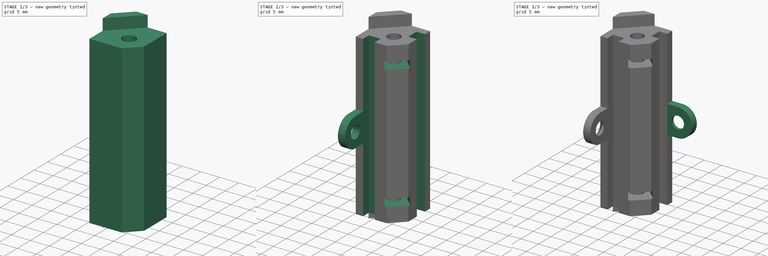
[diagram: build sequence overview — one tinted view per stage of 3, left to right]
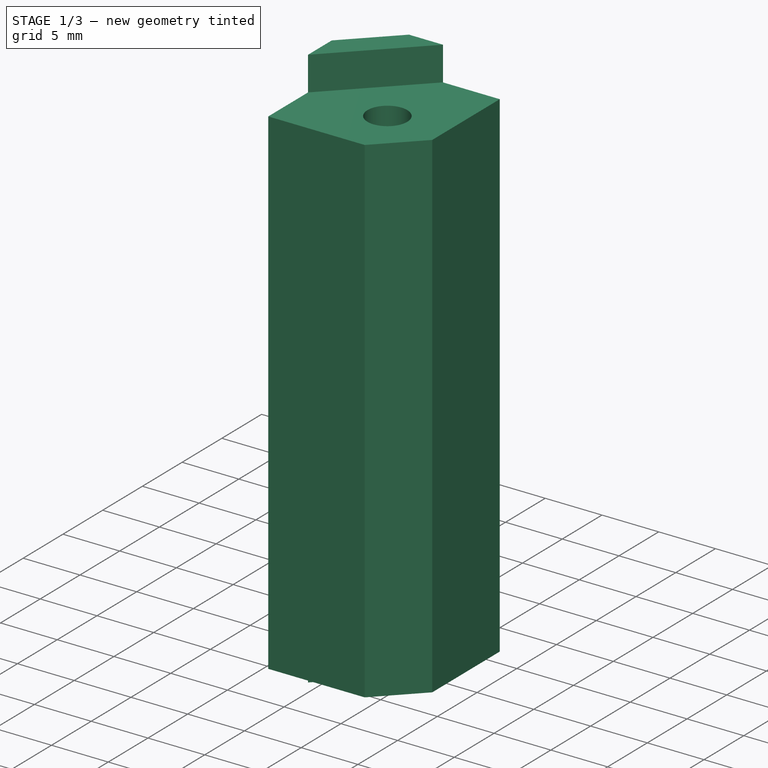
[diagram: stage 1 of 3 — iso view after this stage's code; geometry added in this stage tinted green]
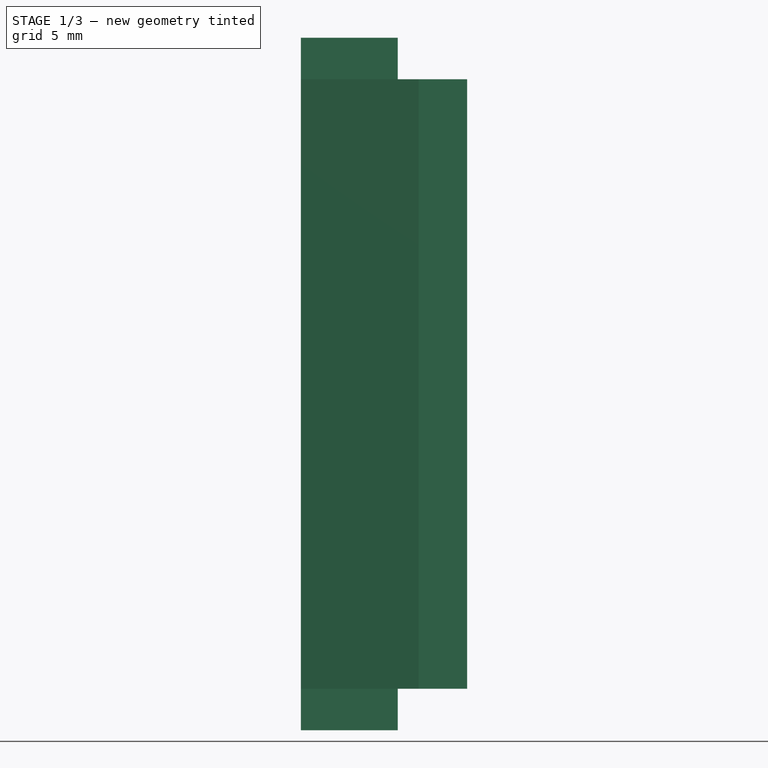
[diagram: stage 1 of 3 — front view after this stage's code; geometry added in this stage tinted green]
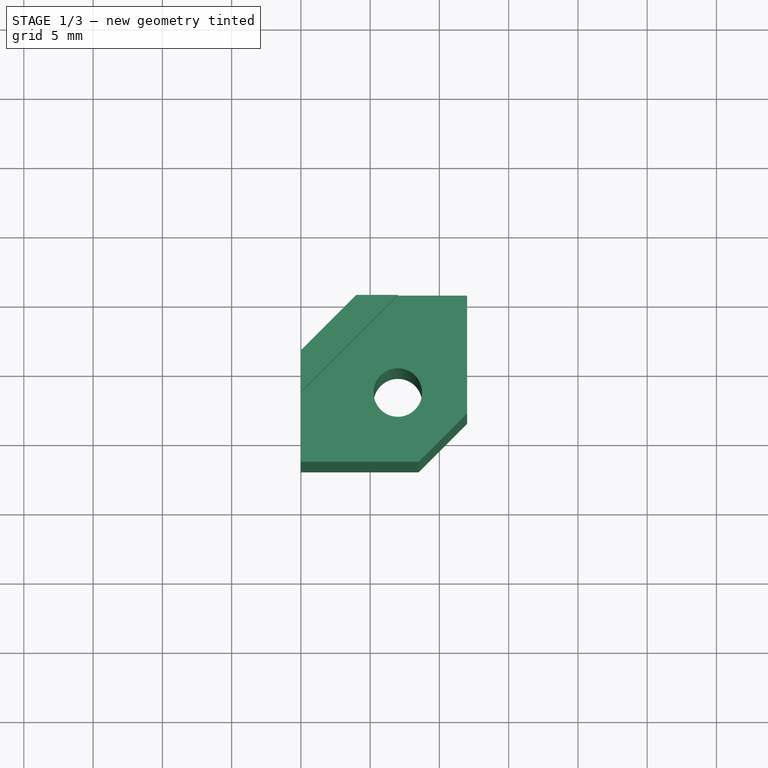
[diagram: stage 1 of 3 — top view after this stage's code; geometry added in this stage tinted green]
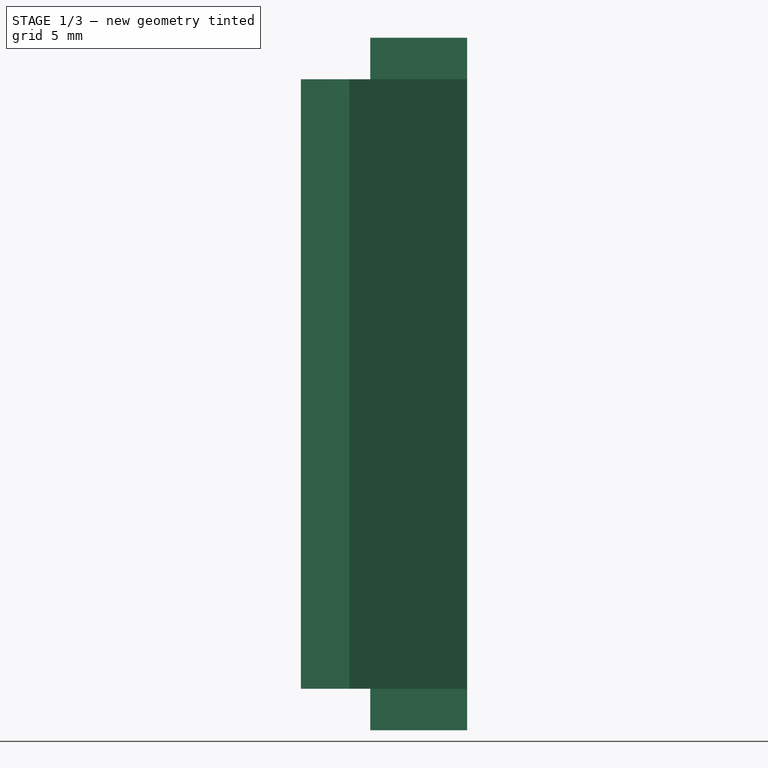
[diagram: stage 1 of 3 — right view after this stage's code; geometry added in this stage tinted green]
FCSTD DOCUMENT  (FreeCAD 0.17R13522 (Git))
Label: Electronics_case_tower_50
License: All rights reserved
LicenseURL: http://en.wikipedia.org/wiki/All_rights_reserved
objects: Sketcher::SketchObject×6, PartDesign::Pad×3, PartDesign::Pocket×3, PartDesign::Chamfer×1, PartDesign::Body×1
note: 20 computed .brp shape members not serialized (recipe doc carries the construction recipe); baked Part::Feature solids carry a one-line shape summary decoded from their .brp

FEATURE [Sketcher::SketchObject] Sketch
  MapMode = 5
  Support = -> [XY_Plane]
  sketch-geometry (14):
    g0: Circle CenterX=7 CenterY=-7 CenterZ=0 NormalX=0 NormalY=0 NormalZ=1 AngleXU=0 Radius=1.75
    g1: LineSegment StartX=0 StartY=-4 StartZ=0 EndX=4 EndY=0 EndZ=0
    g2: LineSegment StartX=4 StartY=0 StartZ=0 EndX=12 EndY=0 EndZ=0
    g3: LineSegment StartX=12 StartY=0 StartZ=0 EndX=12 EndY=-8.5 EndZ=0
    g4: LineSegment StartX=12 StartY=-8.5 StartZ=0 EndX=8.5 EndY=-12 EndZ=0
    g5: LineSegment StartX=8.5 StartY=-12 StartZ=0 EndX=0 EndY=-12 EndZ=0
    g6: LineSegment StartX=0 StartY=-12 StartZ=0 EndX=0 EndY=-4 EndZ=0
    g7: LineSegment [constr] StartX=9.44949 StartY=-9.44949 StartZ=0 EndX=10.3461 EndY=-6.10342 EndZ=0
    g8: LineSegment [constr] StartX=10.3461 StartY=-6.10342 StartZ=0 EndX=7.89658 EndY=-3.65393 EndZ=0
    g9: LineSegment [constr] StartX=7.89658 StartY=-3.65393 StartZ=0 EndX=4.55051 EndY=-4.55051 EndZ=0
    g10: LineSegment [constr] StartX=4.55051 StartY=-4.55051 StartZ=0 EndX=3.65393 EndY=-7.89658 EndZ=0
    g11: LineSegment [constr] StartX=3.65393 StartY=-7.89658 StartZ=0 EndX=6.10342 EndY=-10.3461 EndZ=0
    g12: LineSegment [constr] StartX=6.10342 StartY=-10.3461 StartZ=0 EndX=9.44949 EndY=-9.44949 EndZ=0
    g13: Circle [constr] CenterX=7 CenterY=-7 CenterZ=0 NormalX=0 NormalY=0 NormalZ=1 AngleXU=0 Radius=3.4641
  constraints (37):
    c: PointOnObject(g1,g-2)
    c: PointOnObject(g1,g-1)
    c: Coincident(g1,g2)
    c: Horizontal(g2)
    c: Coincident(g2,g3)
    c: Vertical(g3)
    c: Coincident(g3,g4)
    c: Coincident(g4,g5)
    c: Coincident(g5,g6)
    c: Coincident(g6,g1)
    c: Vertical(g6)
    c: Equal(g6,g2)
    c: Horizontal(g5)
    c: Equal(g3,g5)
    c: DistanceX(g0) = 7
    c: DistanceY(g0) = -7
    c: DistanceY(g1) = -4
    c: DistanceX(g1) = 4
    c: Radius(g0) = 1.75
    c: DistanceY(g5,g-1) = 12
    c: DistanceX(g5,g5) = 8.5
    c: Coincident(g7,g8)
    c: Coincident(g8,g9)
    c: Coincident(g9,g10)
    c: Coincident(g10,g11)
    c: Coincident(g11,g12)
    c: Coincident(g12,g7)
    c: Equal(g7, g8-g12) x5
    c: PointOnObject(g7,g13)
    c: PointOnObject(g8,g13)
    c: PointOnObject(g9,g13)
    c: PointOnObject(g10,g13)
    c: PointOnObject(g11,g13)
    c: PointOnObject(g12,g13)
    c: Coincident(g13,g0)
    c: Distance(g11,g9) = 6
    c: Angle(g11,g5) = 0.785398
FEATURE [PartDesign::Pad] Pad
  Length = 50
  Length2 = 100
  Midplane = true
  Profile = -> Sketch
  Type = 0
FEATURE [Sketcher::SketchObject] Sketch001
  MapMode = 5
  Placement = pos=(10.25,-10.25,0) rot=(0.862856,0.357407,0.357407;1.71777rad)
  Support = -> [Pad]
  sketch-geometry (8):
    g0: LineSegment StartX=-9 StartY=25 StartZ=0 EndX=9 EndY=25 EndZ=0
    g1: LineSegment StartX=9 StartY=25 StartZ=0 EndX=9 EndY=22 EndZ=0
    g2: LineSegment StartX=9 StartY=22 StartZ=0 EndX=-9 EndY=22 EndZ=0
    g3: LineSegment StartX=-9 StartY=22 StartZ=0 EndX=-9 EndY=25 EndZ=0
    g4: LineSegment StartX=-9 StartY=-22 StartZ=0 EndX=9 EndY=-22 EndZ=0
    g5: LineSegment StartX=9 StartY=-22 StartZ=0 EndX=9 EndY=-25 EndZ=0
    g6: LineSegment StartX=9 StartY=-25 StartZ=0 EndX=-9 EndY=-25 EndZ=0
    g7: LineSegment StartX=-9 StartY=-25 StartZ=0 EndX=-9 EndY=-22 EndZ=0
  constraints (23):
    c: Coincident(g0,g1)
    c: Coincident(g1,g2)
    c: Coincident(g2,g3)
    c: Coincident(g3,g0)
    c: Horizontal(g0)
    c: Horizontal(g2)
    c: Vertical(g1)
    c: Vertical(g3)
    c: Coincident(g4,g5)
    c: Coincident(g5,g6)
    c: Coincident(g6,g7)
    c: Coincident(g7,g4)
    c: Horizontal(g4)
    c: Horizontal(g6)
    c: Vertical(g5)
    c: Vertical(g7)
    c: Equal(g0,g6)
    c: Equal(g7,g3)
    c: Symmetric(g2,g1,g-2)
    c: Symmetric(g2,g4,g-1)
    c: DistanceX(g0,g0) = 18
    c: DistanceY(g4,g2) = 44
    c: DistanceY(g3,g3) = 3
FEATURE [PartDesign::Pocket] Pocket
  BaseFeature = -> Pad
  Length = 9.55
  Length2 = 100
  Profile = -> Sketch001
  Type = 0
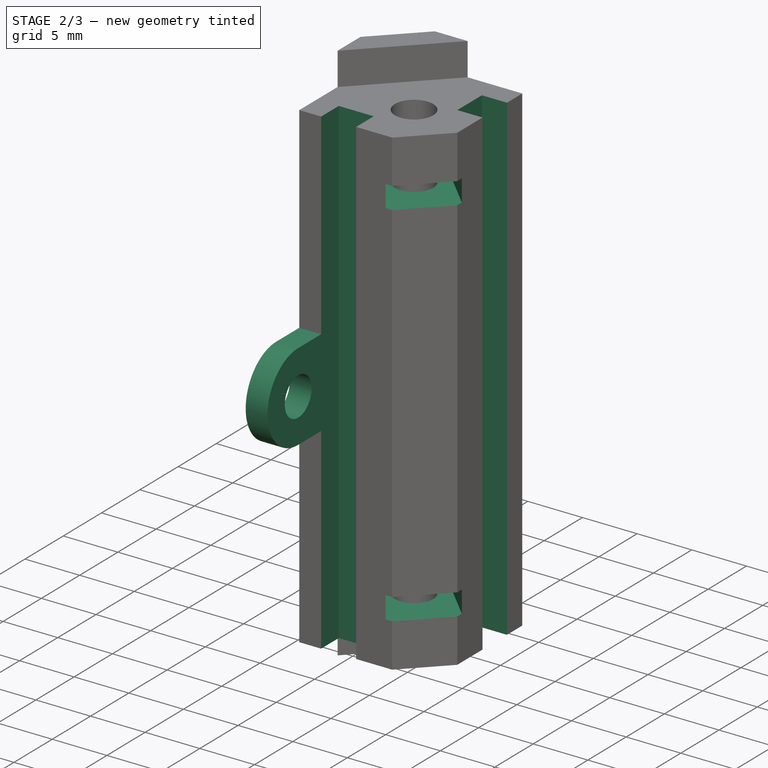
[diagram: stage 2 of 3 — iso view after this stage's code; geometry added in this stage tinted green]
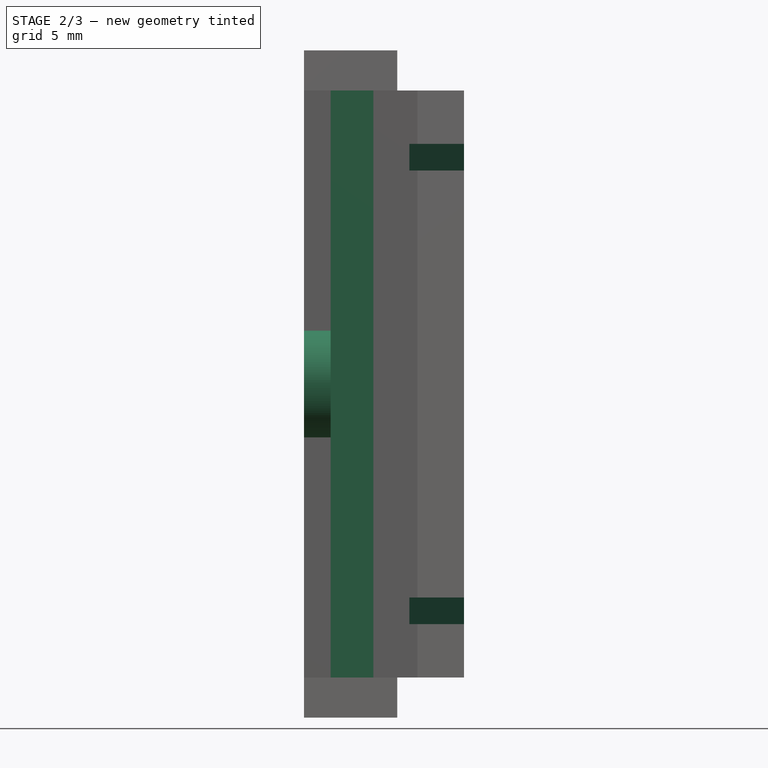
[diagram: stage 2 of 3 — front view after this stage's code; geometry added in this stage tinted green]
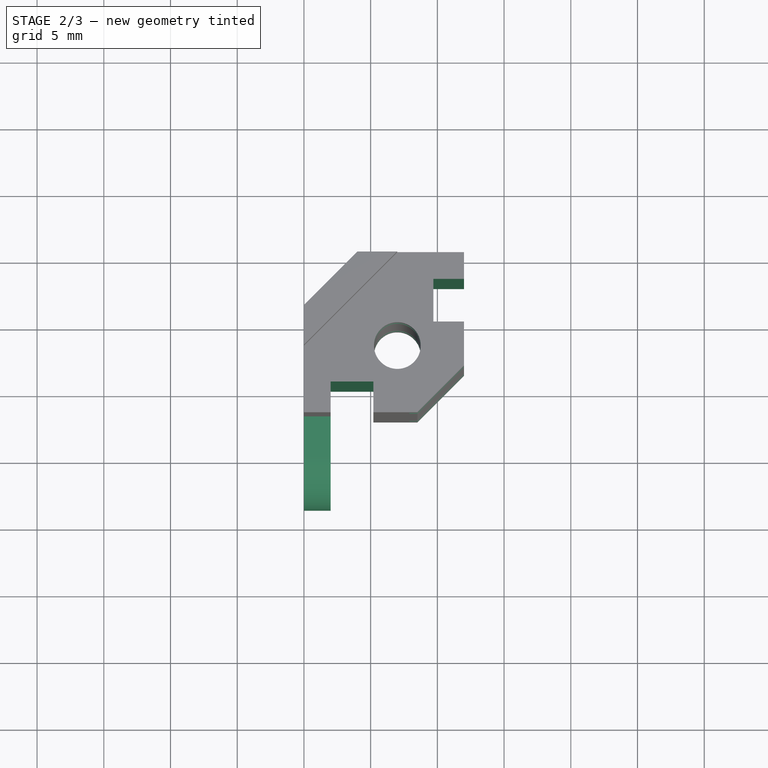
[diagram: stage 2 of 3 — top view after this stage's code; geometry added in this stage tinted green]
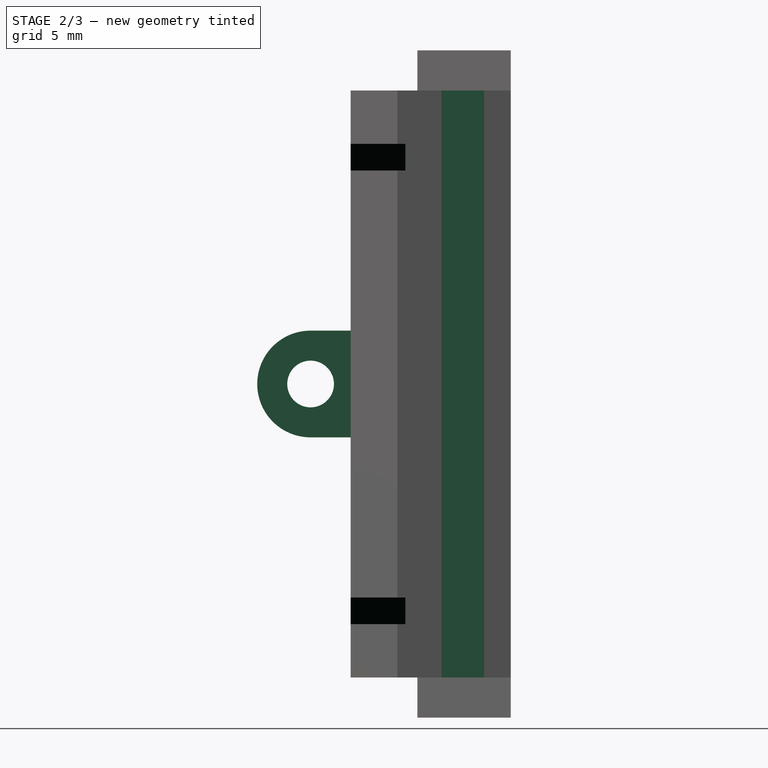
[diagram: stage 2 of 3 — right view after this stage's code; geometry added in this stage tinted green]
FEATURE [Sketcher::SketchObject] Sketch002
  MapMode = 5
  Placement = pos=(10.25,-10.25,0) rot=(0.862856,0.357407,0.357407;1.71777rad)
  Support = -> [Pocket]
  sketch-geometry (8):
    g0: LineSegment StartX=-2.9 StartY=18 StartZ=0 EndX=2.9 EndY=18 EndZ=0
    g1: LineSegment StartX=2.9 StartY=18 StartZ=0 EndX=2.9 EndY=16 EndZ=0
    g2: LineSegment StartX=2.9 StartY=16 StartZ=0 EndX=-2.9 EndY=16 EndZ=0
    g3: LineSegment StartX=-2.9 StartY=16 StartZ=0 EndX=-2.9 EndY=18 EndZ=0
    g4: LineSegment StartX=-2.9 StartY=-16 StartZ=0 EndX=2.9 EndY=-16 EndZ=0
    g5: LineSegment StartX=2.9 StartY=-16 StartZ=0 EndX=2.9 EndY=-18 EndZ=0
    g6: LineSegment StartX=2.9 StartY=-18 StartZ=0 EndX=-2.9 EndY=-18 EndZ=0
    g7: LineSegment StartX=-2.9 StartY=-18 StartZ=0 EndX=-2.9 EndY=-16 EndZ=0
  constraints (23):
    c: Coincident(g0,g1)
    c: Coincident(g1,g2)
    c: Coincident(g2,g3)
    c: Coincident(g3,g0)
    c: Horizontal(g0)
    c: Horizontal(g2)
    c: Vertical(g1)
    c: Vertical(g3)
    c: Coincident(g4,g5)
    c: Coincident(g5,g6)
    c: Coincident(g6,g7)
    c: Coincident(g7,g4)
    c: Horizontal(g4)
    c: Horizontal(g6)
    c: Vertical(g5)
    c: Vertical(g7)
    c: Symmetric(g2,g1,g-2)
    c: Symmetric(g2,g4,g-1)
    c: Equal(g7,g3)
    c: Symmetric(g4,g4,g-2)
    c: DistanceY(g7,g7) = 2
    c: DistanceY(g4,g2) = 32
    c: DistanceX(g6,g6) = 5.8
FEATURE [PartDesign::Pocket] Pocket001
  BaseFeature = -> Pocket
  Length = 9
  Length2 = 100
  Profile = -> Sketch002
  Type = 0
FEATURE [Sketcher::SketchObject] Sketch003
  MapMode = 5
  Placement = pos=(0,0,-25) rot=(1,0,0;3.14159rad)
  Support = -> [Pocket001]
  sketch-geometry (8):
    g0: LineSegment StartX=2 StartY=12 StartZ=0 EndX=5.2 EndY=12 EndZ=0
    g1: LineSegment StartX=5.2 StartY=12 StartZ=0 EndX=5.2 EndY=9.7 EndZ=0
    g2: LineSegment StartX=5.2 StartY=9.7 StartZ=0 EndX=2 EndY=9.7 EndZ=0
    g3: LineSegment StartX=2 StartY=9.7 StartZ=0 EndX=2 EndY=12 EndZ=0
    g4: LineSegment StartX=12 StartY=5.2 StartZ=0 EndX=9.7 EndY=5.2 EndZ=0
    g5: LineSegment StartX=9.7 StartY=5.2 StartZ=0 EndX=9.7 EndY=2 EndZ=0
    g6: LineSegment StartX=9.7 StartY=2 StartZ=0 EndX=12 EndY=2 EndZ=0
    g7: LineSegment StartX=12 StartY=2 StartZ=0 EndX=12 EndY=5.2 EndZ=0
  constraints (24):
    c: Coincident(g0,g1)
    c: Coincident(g1,g2)
    c: Coincident(g2,g3)
    c: Coincident(g3,g0)
    c: Horizontal(g0)
    c: Horizontal(g2)
    c: Vertical(g1)
    c: Vertical(g3)
    c: Coincident(g4,g5)
    c: Coincident(g5,g6)
    c: Coincident(g6,g7)
    c: Coincident(g7,g4)
    c: Horizontal(g4)
    c: Horizontal(g6)
    c: Vertical(g5)
    c: Vertical(g7)
    c: Equal(g0,g7)
    c: Equal(g3,g6)
    c: DistanceY(g3,g3) = 2.3
    c: DistanceY(g-1,g0) = 12
    c: DistanceX(g-1,g6) = 12
    c: DistanceY(g-1,g6) = 2
    c: DistanceY(g7,g7) = 3.2
    c: DistanceX(g-1,g0) = 2
FEATURE [PartDesign::Pocket] Pocket002
  BaseFeature = -> Pocket001
  Length = 5
  Length2 = 100
  Profile = -> Sketch003
  Type = 1
FEATURE [Sketcher::SketchObject] Sketch004
  MapMode = 5
  Placement = pos=(0,0,0) rot=(0.57735,-0.57735,-0.57735;2.0944rad)
  Support = -> [Pocket002]
  sketch-geometry (6):
    g0: LineSegment StartX=12 StartY=4 StartZ=0 EndX=15 EndY=4 EndZ=0
    g1: LineSegment [constr] StartX=15 StartY=4 StartZ=0 EndX=15 EndY=-4 EndZ=0
    g2: LineSegment StartX=15 StartY=-4 StartZ=0 EndX=12 EndY=-4 EndZ=0
    g3: LineSegment StartX=12 StartY=-4 StartZ=0 EndX=12 EndY=4 EndZ=0
    g4: Circle CenterX=15 CenterY=0 CenterZ=0 NormalX=0 NormalY=0 NormalZ=1 AngleXU=0 Radius=1.75
    g5: ArcOfCircle CenterX=15 CenterY=0 CenterZ=0 NormalX=0 NormalY=0 NormalZ=1 AngleXU=0 Radius=4 StartAngle=4.71239 EndAngle=7.85398
  constraints (18):
    c: Coincident(g0,g1)
    c: Coincident(g1,g2)
    c: Coincident(g2,g3)
    c: Coincident(g3,g0)
    c: Horizontal(g0)
    c: Horizontal(g2)
    c: Vertical(g1)
    c: Vertical(g3)
    c: PointOnObject(g4,g-1)
    c: PointOnObject(g4,g1)
    c: Symmetric(g1,g0,g-1)
    c: Coincident(g5,g4)
    c: Coincident(g5,g1)
    c: Coincident(g5,g0)
    c: Radius(g4) = 1.75
    c: Radius(g5) = 4
    c: DistanceX(g-1,g2) = 12
    c: DistanceX(g-1,g4) = 15
FEATURE [PartDesign::Pad] Pad001
  BaseFeature = -> Pocket002
  Length = 2
  Length2 = 100
  Profile = -> Sketch004
  Reversed = true
  Type = 0
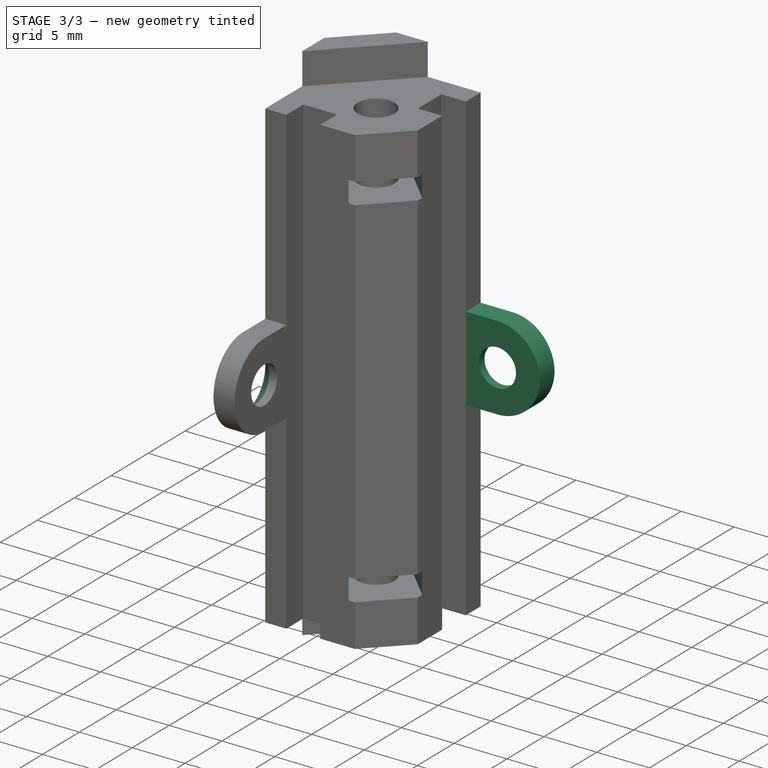
[diagram: stage 3 of 3 — iso view after this stage's code; geometry added in this stage tinted green]
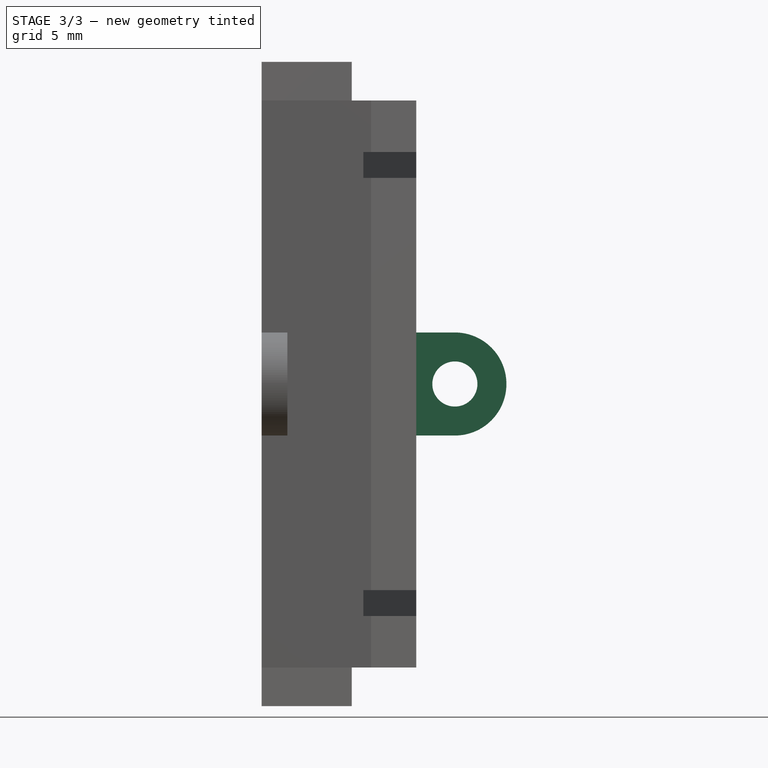
[diagram: stage 3 of 3 — front view after this stage's code; geometry added in this stage tinted green]
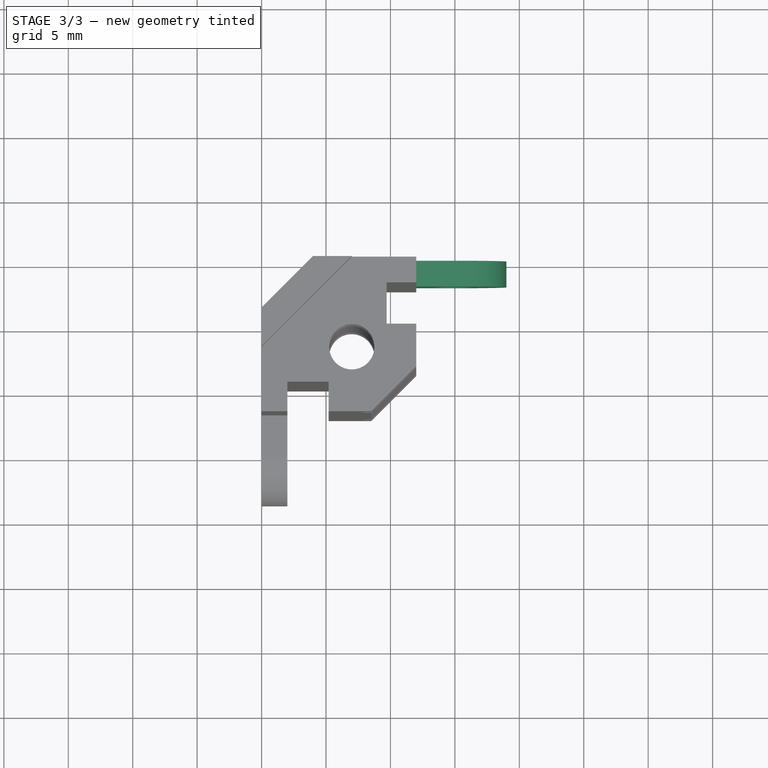
[diagram: stage 3 of 3 — top view after this stage's code; geometry added in this stage tinted green]
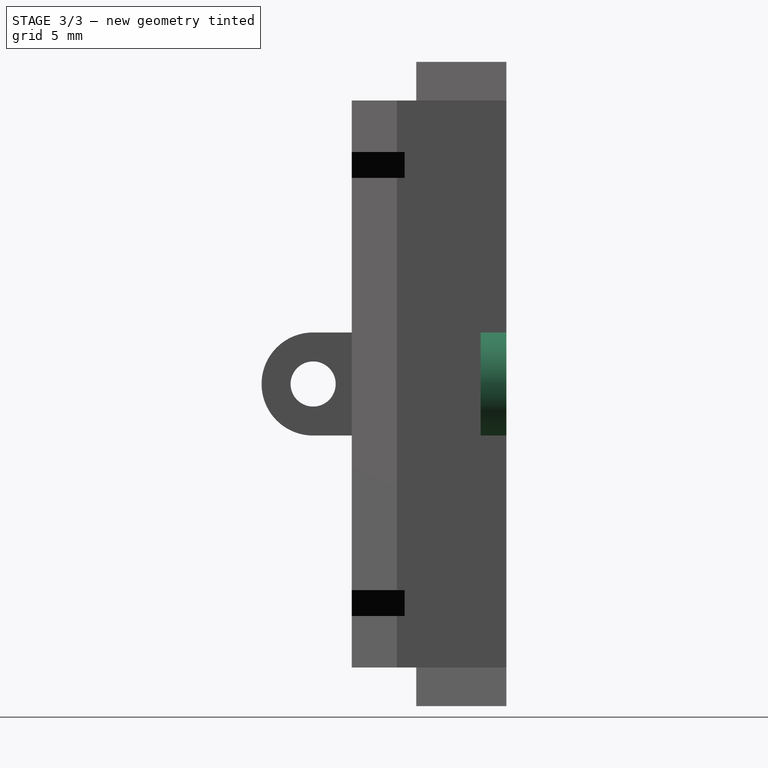
[diagram: stage 3 of 3 — right view after this stage's code; geometry added in this stage tinted green]
FEATURE [Sketcher::SketchObject] Sketch005
  MapMode = 5
  Placement = pos=(0,0,0) rot=(0,0.707107,0.707107;3.14159rad)
  Support = -> [Pad001]
  sketch-geometry (5):
    g0: Circle CenterX=-15 CenterY=0 CenterZ=0 NormalX=0 NormalY=0 NormalZ=1 AngleXU=0 Radius=1.75
    g1: LineSegment StartX=-12 StartY=4 StartZ=0 EndX=-15 EndY=4 EndZ=0
    g2: LineSegment StartX=-15 StartY=-4 StartZ=0 EndX=-12 EndY=-4 EndZ=0
    g3: LineSegment StartX=-12 StartY=-4 StartZ=0 EndX=-12 EndY=4 EndZ=0
    g4: ArcOfCircle CenterX=-15 CenterY=0 CenterZ=0 NormalX=0 NormalY=0 NormalZ=1 AngleXU=0 Radius=4 StartAngle=1.5708 EndAngle=4.71239
  constraints (16):
    c: PointOnObject(g0,g-1)
    c: Coincident(g2,g3)
    c: Coincident(g3,g1)
    c: Horizontal(g1)
    c: Horizontal(g2)
    c: Vertical(g3)
    c: Radius(g0) = 1.75
    c: Symmetric(g1,g2,g-1)
    c: DistanceX(g2,g-1) = 12
    c: DistanceX(g0,g-1) = 15
    c: Coincident(g4,g0)
    c: Coincident(g4,g1)
    c: Coincident(g4,g2)
    c: Radius(g4) = 4
    c: Equal(g2,g1)
    c: DistanceX(g2,g2) = 3
FEATURE [PartDesign::Pad] Pad002
  BaseFeature = -> Pad001
  Length = 2
  Length2 = 100
  Profile = -> Sketch005
  Reversed = true
  Type = 0
FEATURE [PartDesign::Chamfer] Chamfer
  Base = -> Pad002 [Edge64,Edge43]
  BaseFeature = -> Pad002
  Size = 1.25
FEATURE [PartDesign::Body] Body
  Group = -> [Sketch,Pad,Sketch001,Pocket,Sketch002,Pocket001,Sketch003,Pocket002,Sketch004,Pad001,Sketch005,Pad002,Chamfer]
  Origin = -> Origin
  Tip = -> Chamfer
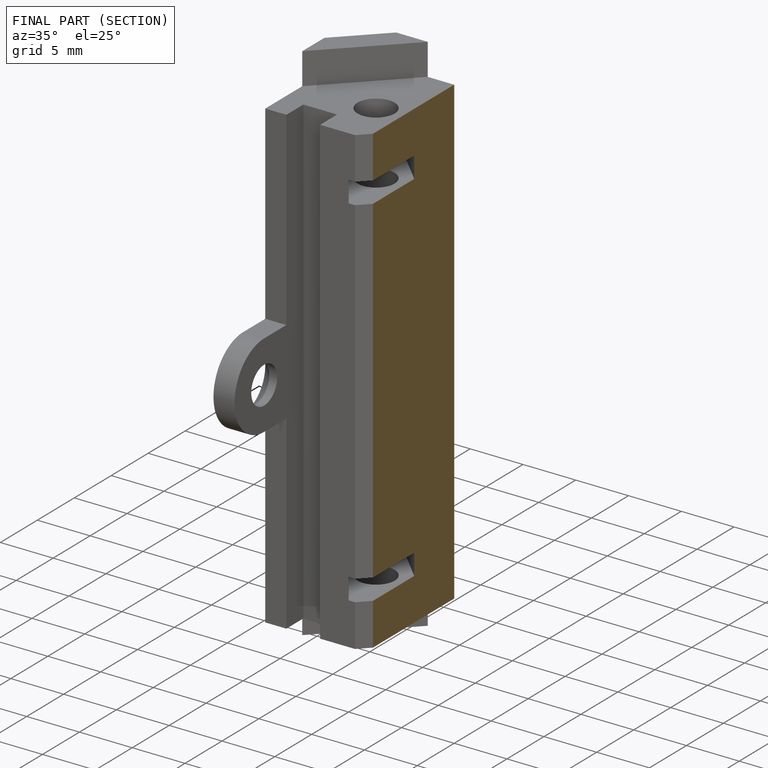
[diagram: finished part — half-section view (interior)]
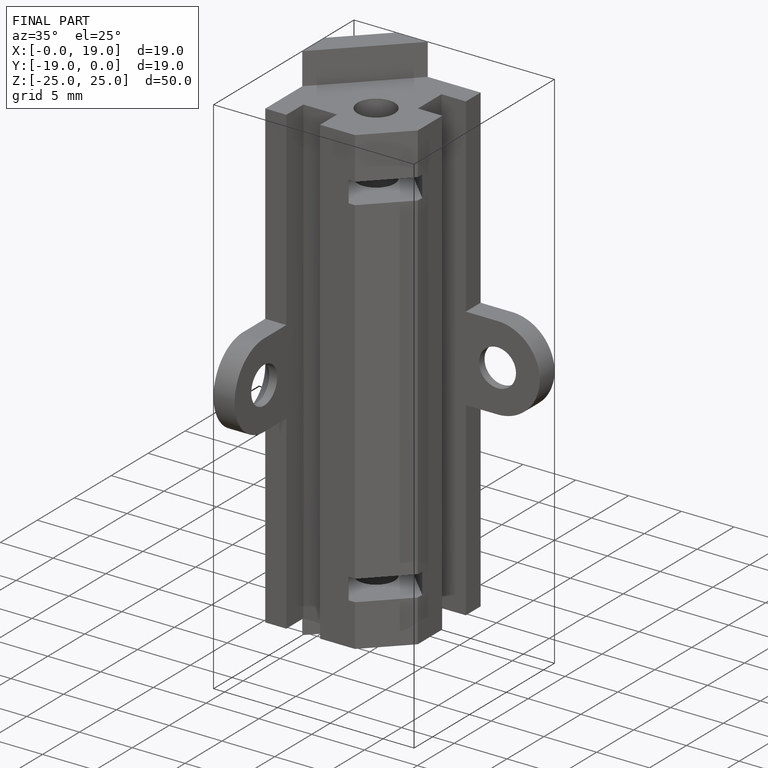
[diagram: finished part — iso view with bounding-box wireframe]
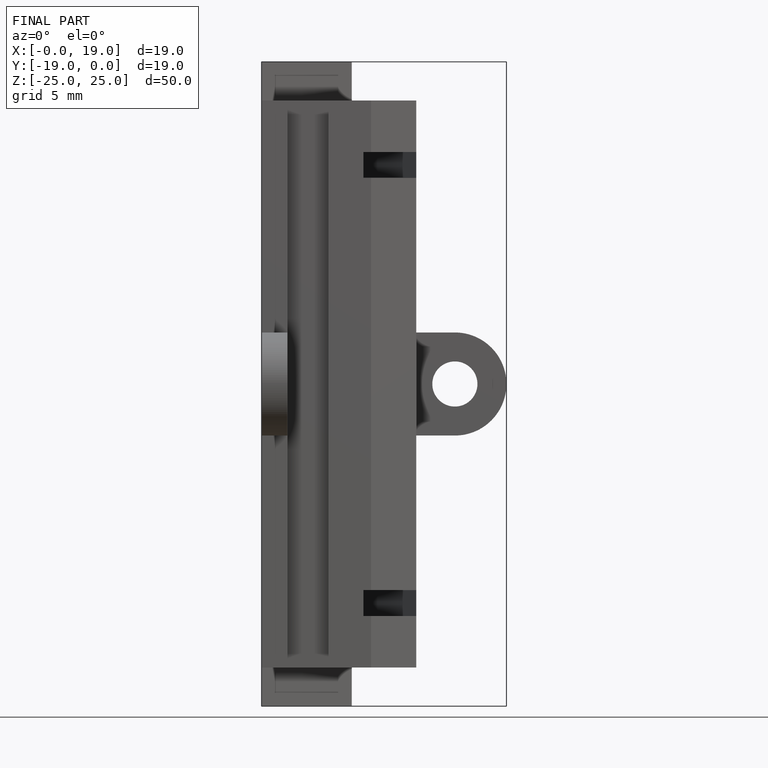
[diagram: finished part — front view with bounding-box wireframe]
